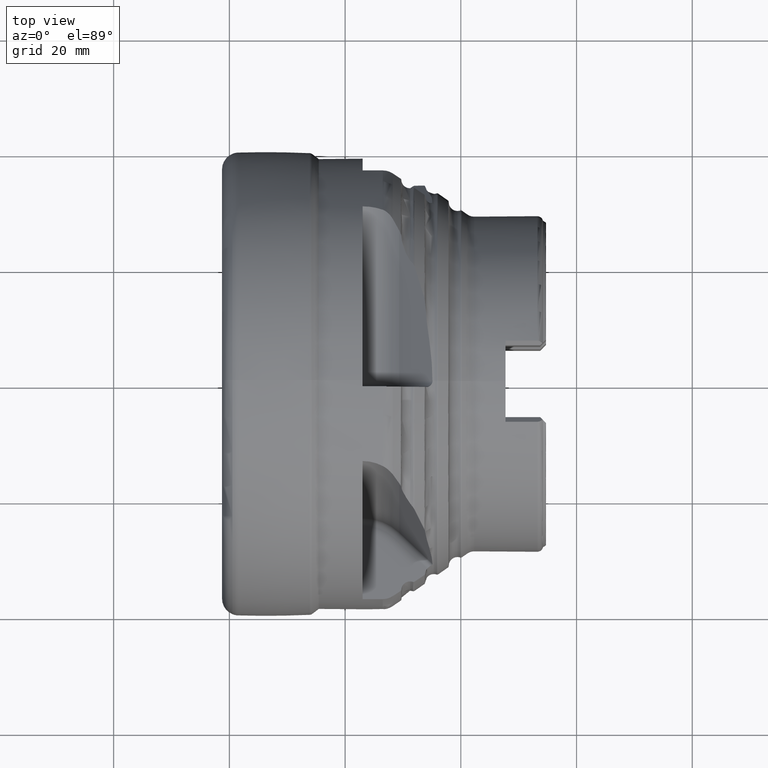
[diagram: clean part render]
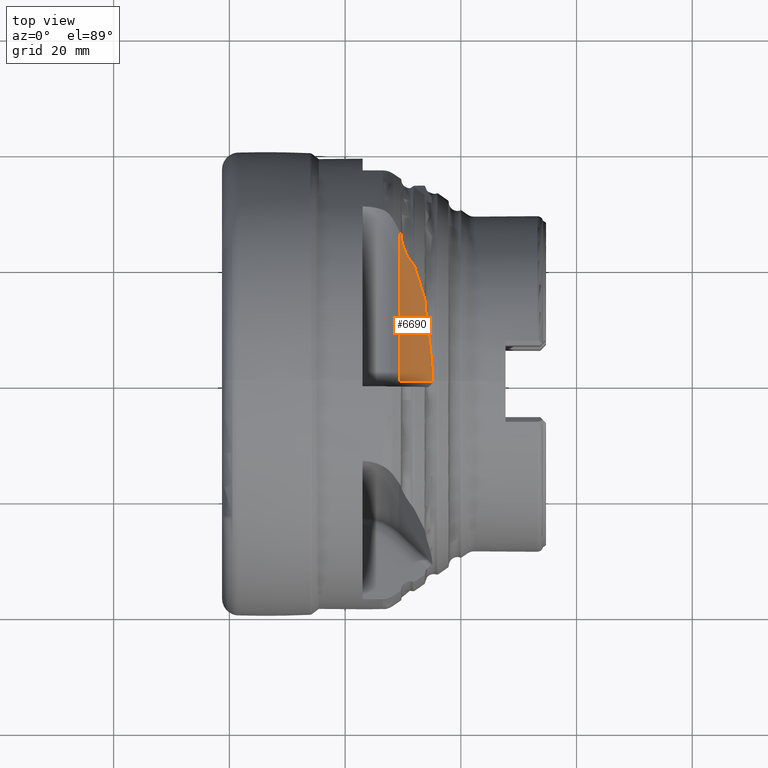
[diagram: same view with one face highlighted and labeled with its STEP entity id]
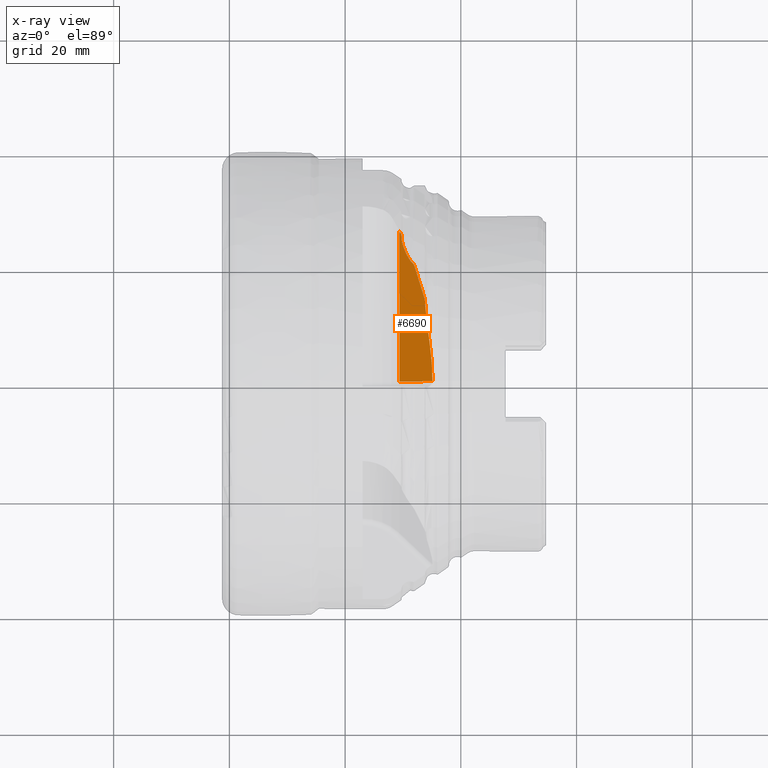
[diagram: x-ray of the same camera — body ghosted, the highlighted face saturated]
A machine part, top view. The second image highlights one B-rep face of the part: STEP entity #6690.
The next image is the same camera in x-ray: the body ghosted, the highlighted face saturated — about 0% of this face is hidden behind the body in this view.
In plain terms, the highlighted planar face has unit normal (-0.7071, -0, 0.7071).
Its self-contained STEP definition (entity closure, byte-faithful):
#28 = EDGE_CURVE ( 'NONE', #6979, #6977, #4887, .T. ) ;
#36 = EDGE_CURVE ( 'NONE', #6976, #6910, #1404, .T. ) ;
#37 = EDGE_CURVE ( 'NONE', #6909, #6979, #1405, .T. ) ;
#44 = EDGE_CURVE ( 'NONE', #6974, #6976, #1411, .T. ) ;
#47 = EDGE_CURVE ( 'NONE', #6972, #6974, #4888, .T. ) ;
#48 = EDGE_CURVE ( 'NONE', #6876, #6972, #1413, .T. ) ;
#153 = EDGE_CURVE ( 'NONE', #6977, #6923, #635, .T. ) ;
#156 = EDGE_CURVE ( 'NONE', #6923, #6875, #624, .T. ) ;
#315 = EDGE_CURVE ( 'NONE', #6890, #6876, #1453, .T. ) ;
#326 = EDGE_CURVE ( 'NONE', #6910, #6909, #1458, .T. ) ;
#613 = VECTOR ( 'NONE', #4629, 1000.000000000000000 ) ;
#624 = LINE ( 'NONE', #4461, #640 ) ;
#635 = LINE ( 'NONE', #4695, #613 ) ;
#640 = VECTOR ( 'NONE', #4707, 1000.000000000000100 ) ;
#1366 = FACE_OUTER_BOUND ( 'NONE', #6403, .T. ) ;
#1404 = B_SPLINE_CURVE_WITH_KNOTS ( 'NONE', 3,
 ( #7063, #7058, #7057, #7056 ),
 .UNSPECIFIED., .F., .F.,
 ( 4, 4 ),
 ( 3.237615775470779700E-007, 0.0008967811624608510100 ),
 .UNSPECIFIED. ) ;
#1405 = B_SPLINE_CURVE_WITH_KNOTS ( 'NONE', 3,
 ( #7059, #7054, #7053, #7052, #7051, #7050 ),
 .UNSPECIFIED., .F., .F.,
 ( 4, 2, 4 ),
 ( 0.0003340537686082686200, 0.0006036569792743976200, 0.0008732601899405264700 ),
 .UNSPECIFIED. ) ;
#1411 = B_SPLINE_CURVE_WITH_KNOTS ( 'NONE', 3,
 ( #7194, #7199, #7200, #7198, #7196, #7197 ),
 .UNSPECIFIED., .F., .F.,
 ( 4, 2, 4 ),
 ( 6.175144802731143700E-007, 0.0003056811056389004900, 0.0006107446967975278600 ),
 .UNSPECIFIED. ) ;
#1413 = B_SPLINE_CURVE_WITH_KNOTS ( 'NONE', 3,
 ( #7202, #7215, #7221, #7222, #7219, #7220 ),
 .UNSPECIFIED., .F., .F.,
 ( 4, 2, 4 ),
 ( 0.0004556930555450783700, 0.0009209709596188730900, 0.001386248863692667800 ),
 .UNSPECIFIED. ) ;
#1453 = B_SPLINE_CURVE_WITH_KNOTS ( 'NONE', 3,
 ( #1516, #1580, #1469, #1507, #1689, #1667, #1594, #1577, #1753, #1661, #1600, #1626, #1562, #1622 ),
 .UNSPECIFIED., .F., .F.,
 ( 4, 2, 2, 2, 2, 2, 4 ),
 ( 0.001099749272328053200, 0.004500736626076648800, 0.007901723979825244600, 0.01130271133357383700, 0.01300320501044813200, 0.01385345184888528300, 0.01470369868732243300 ),
 .UNSPECIFIED. ) ;
#1458 = B_SPLINE_CURVE_WITH_KNOTS ( 'NONE', 3,
 ( #1532, #1767, #1766, #1769, #1629, #1763, #1762, #1715, #1695, #1649, #1709, #1708, #1768, #1760 ),
 .UNSPECIFIED., .F., .F.,
 ( 4, 2, 2, 2, 2, 2, 4 ),
 ( 0.0008967811624608510100, 0.001496497741807382300, 0.002096214321153913700, 0.003295647479846984700, 0.004495080638540056200, 0.005094797217886594100, 0.005694513797233131900 ),
 .UNSPECIFIED. ) ;
#1469 = CARTESIAN_POINT ( 'NONE',  ( 35.04683401583235300, 2.268914078732316300, 32.81891195447445100 ) ) ;
#1507 = CARTESIAN_POINT ( 'NONE',  ( 34.86144128666849400, 4.517259381532301000, 32.63351922531059300 ) ) ;
#1516 = CARTESIAN_POINT ( 'NONE',  ( 35.09986830833947400, 4.354196652457896800E-020, 32.87194624698155800 ) ) ;
#1532 = CARTESIAN_POINT ( 'NONE',  ( 31.23032993495438000, 20.85572683753805400, 29.00240787359651100 ) ) ;
#1562 = CARTESIAN_POINT ( 'NONE',  ( 33.82758236557923200, 13.15464473688919800, 31.59966030422133800 ) ) ;
#1577 = CARTESIAN_POINT ( 'NONE',  ( 34.05401712779833900, 10.63270310376406500, 31.82609506644044800 ) ) ;
#1580 = CARTESIAN_POINT ( 'NONE',  ( 35.09986830833947400, 1.133785510982318900, 32.87194624698155100 ) ) ;
#1594 = CARTESIAN_POINT ( 'NONE',  ( 34.27405978638537200, 8.964817630175950600, 32.04613772502745700 ) ) ;
#1600 = CARTESIAN_POINT ( 'NONE',  ( 33.87691074784719800, 12.31047665211210100, 31.64898868648930000 ) ) ;
#1622 = CARTESIAN_POINT ( 'NONE',  ( 33.82627103026551700, 13.43726402395549400, 31.59834896890761900 ) ) ;
#1626 = CARTESIAN_POINT ( 'NONE',  ( 33.84017839001941000, 12.87294269956251600, 31.61225632866152000 ) ) ;
#1629 = CARTESIAN_POINT ( 'NONE',  ( 30.76417731910525800, 21.60856248885390600, 28.53625525774738800 ) ) ;
#1649 = CARTESIAN_POINT ( 'NONE',  ( 29.84712768899012400, 24.06729060827890600, 27.61920562763226900 ) ) ;
#1661 = CARTESIAN_POINT ( 'NONE',  ( 33.90130511847371500, 12.02956182918720400, 31.67338305711581000 ) ) ;
#1667 = CARTESIAN_POINT ( 'NONE',  ( 34.43725377605961300, 7.856636565922880100, 32.20933171470170500 ) ) ;
#1689 = CARTESIAN_POINT ( 'NONE',  ( 34.73032573723448700, 5.632717076338067000, 32.50240367587658600 ) ) ;
#1695 = CARTESIAN_POINT ( 'NONE',  ( 29.98309940204731600, 23.49929748550044600, 27.75517734068946400 ) ) ;
#1708 = CARTESIAN_POINT ( 'NONE',  ( 29.75104601313109500, 24.65328264356341800, 27.52312395177323600 ) ) ;
#1709 = CARTESIAN_POINT ( 'NONE',  ( 29.80854088780115400, 24.25966151928039600, 27.58061882644329500 ) ) ;
#1715 = CARTESIAN_POINT ( 'NONE',  ( 30.10118137447482300, 23.13086661111229200, 27.87325931311696100 ) ) ;
#1753 = CARTESIAN_POINT ( 'NONE',  ( 33.98481882349442900, 11.18960613829630700, 31.75689676213652000 ) ) ;
#1760 = CARTESIAN_POINT ( 'NONE',  ( 29.73043769693220600, 25.05578014618016900, 27.50251563557435500 ) ) ;
#1762 = CARTESIAN_POINT ( 'NONE',  ( 30.36770548199628500, 22.42817589741174100, 28.13978342063843000 ) ) ;
#1763 = CARTESIAN_POINT ( 'NONE',  ( 30.51691904010258200, 22.09163154216318100, 28.28899697874472000 ) ) ;
#1766 = CARTESIAN_POINT ( 'NONE',  ( 31.03292412082088700, 21.14543209789290000, 28.80500205946302500 ) ) ;
#1767 = CARTESIAN_POINT ( 'NONE',  ( 31.12925927336323200, 20.99627780343606900, 28.90133721200536600 ) ) ;
#1768 = CARTESIAN_POINT ( 'NONE',  ( 29.73205189884033600, 24.85405862211233300, 27.50412983748248400 ) ) ;
#1769 = CARTESIAN_POINT ( 'NONE',  ( 30.85059231411529600, 21.45124685924574600, 28.62267025275743400 ) ) ;
#2067 = AXIS2_PLACEMENT_3D ( 'NONE', #3443, #3446, #3447 ) ;
#2853 = CARTESIAN_POINT ( 'NONE',  ( 35.09973634728064000, -0.1000000000000020200, 32.87181428592273800 ) ) ;
#2857 = CARTESIAN_POINT ( 'NONE',  ( 35.09982432041331900, -0.06666575008013979300, 32.87190225905540300 ) ) ;
#2858 = CARTESIAN_POINT ( 'NONE',  ( 35.09986830833945200, -0.03333241672791531500, 32.87194624698153700 ) ) ;
#2859 = CARTESIAN_POINT ( 'NONE',  ( 35.09986830833947400, 4.354196652457896800E-020, 32.87194624698155800 ) ) ;
#3443 = CARTESIAN_POINT ( 'NONE',  ( 29.36396103067889000, 38.95000000000001000, 27.13603896932104600 ) ) ;
#3444 = PLANE ( 'NONE',  #2067 ) ;
#3446 = DIRECTION ( 'NONE',  ( -0.7071067811865436900, -4.329637285359701700E-017, 0.7071067811865514600 ) ) ;
#3447 = DIRECTION ( 'NONE',  ( 0.7071067811865513500, 0.0000000000000000000, 0.7071067811865435800 ) ) ;
#3552 = B_SPLINE_CURVE_WITH_KNOTS ( 'NONE', 3,
 ( #2853, #2857, #2858, #2859 ),
 .UNSPECIFIED., .F., .F.,
 ( 4, 4 ),
 ( 0.0009997628757270789200, 0.001099749272328053200 ),
 .UNSPECIFIED. ) ;
#3832 = CARTESIAN_POINT ( 'NONE',  ( 35.09973634728064000, -0.1000000000000020200, 32.87181428592273800 ) ) ;
#3833 = CARTESIAN_POINT ( 'NONE',  ( 33.82627103026551700, 13.43726402395549400, 31.59834896890761900 ) ) ;
#3847 = CARTESIAN_POINT ( 'NONE',  ( 35.09986830833947400, 4.354196652457896800E-020, 32.87194624698155800 ) ) ;
#3866 = CARTESIAN_POINT ( 'NONE',  ( 29.73043769693220600, 25.05578014618016900, 27.50251563557435500 ) ) ;
#3867 = CARTESIAN_POINT ( 'NONE',  ( 31.23032993495438000, 20.85572683753805400, 29.00240787359651100 ) ) ;
#3880 = CARTESIAN_POINT ( 'NONE',  ( 29.36396103067889000, -0.1000000000000028600, 27.13603896932104200 ) ) ;
#3926 = CARTESIAN_POINT ( 'NONE',  ( 33.69835924852056800, 14.32883569241140400, 31.47043718716267700 ) ) ;
#3928 = CARTESIAN_POINT ( 'NONE',  ( 31.99780062542403800, 19.82979794135675900, 29.76987856406618200 ) ) ;
#3930 = CARTESIAN_POINT ( 'NONE',  ( 31.72649995546286000, 20.29716065155177800, 29.49857789410498300 ) ) ;
#3931 = CARTESIAN_POINT ( 'NONE',  ( 29.36396103067889000, 26.04670390025549100, 27.13603896932104600 ) ) ;
#3933 = CARTESIAN_POINT ( 'NONE',  ( 29.60252591518726800, 25.55168612465652000, 27.37460385382941700 ) ) ;
#4461 = CARTESIAN_POINT ( 'NONE',  ( 29.36396103067889000, -0.1000000000000028600, 27.13603896932104200 ) ) ;
#4629 = DIRECTION ( 'NONE',  ( 0.0000000000000000000, -1.000000000000000000, -6.123031769111886300E-017 ) ) ;
#4695 = CARTESIAN_POINT ( 'NONE',  ( 29.36396103067889000, 38.95000000000001000, 27.13603896932104600 ) ) ;
#4707 = DIRECTION ( 'NONE',  ( 0.7071067811865513500, -4.329637285359654900E-017, 0.7071067811865435800 ) ) ;
#4887 =( BOUNDED_CURVE ( )  B_SPLINE_CURVE ( 3, ( #7099, #7094, #7093, #7092 ),
 .UNSPECIFIED., .F., .F. ) 
 B_SPLINE_CURVE_WITH_KNOTS ( ( 4, 4 ),
 ( 3.469690055763369000, 3.476292166023215100 ),
 .UNSPECIFIED. ) 
 CURVE ( )  GEOMETRIC_REPRESENTATION_ITEM ( )  RATIONAL_B_SPLINE_CURVE ( ( 1.000000000000000000, 0.9999963676816415700, 0.9999963676816415700, 1.000000000000000000 ) ) 
 REPRESENTATION_ITEM ( '' )  );
#4888 =( BOUNDED_CURVE ( )  B_SPLINE_CURVE ( 3, ( #7208, #7206, #7212, #7213 ),
 .UNSPECIFIED., .F., .T. ) 
 B_SPLINE_CURVE_WITH_KNOTS ( ( 4, 4 ),
 ( 3.323297547860762700, 3.394357073035569900 ),
 .UNSPECIFIED. ) 
 CURVE ( )  GEOMETRIC_REPRESENTATION_ITEM ( )  RATIONAL_B_SPLINE_CURVE ( ( 1.000000000000000000, 0.9995792562539356200, 0.9995792562539356200, 1.000000000000000000 ) ) 
 REPRESENTATION_ITEM ( '' )  );
#5188 = EDGE_CURVE ( 'NONE', #6875, #6890, #3552, .T. ) ;
#5866 = ORIENTED_EDGE ( 'NONE', *, *, #153, .T. ) ;
#5867 = ORIENTED_EDGE ( 'NONE', *, *, #156, .T. ) ;
#5868 = ORIENTED_EDGE ( 'NONE', *, *, #5188, .T. ) ;
#5869 = ORIENTED_EDGE ( 'NONE', *, *, #315, .T. ) ;
#5870 = ORIENTED_EDGE ( 'NONE', *, *, #48, .T. ) ;
#5871 = ORIENTED_EDGE ( 'NONE', *, *, #47, .T. ) ;
#5872 = ORIENTED_EDGE ( 'NONE', *, *, #44, .T. ) ;
#5873 = ORIENTED_EDGE ( 'NONE', *, *, #36, .T. ) ;
#5874 = ORIENTED_EDGE ( 'NONE', *, *, #326, .T. ) ;
#5875 = ORIENTED_EDGE ( 'NONE', *, *, #37, .T. ) ;
#5876 = ORIENTED_EDGE ( 'NONE', *, *, #28, .T. ) ;
#6403 = EDGE_LOOP ( 'NONE', ( #5866, #5867, #5868, #5869, #5870, #5871, #5872, #5873, #5874, #5875, #5876 ) ) ;
#6690 = ADVANCED_FACE ( 'NONE', ( #1366 ), #3444, .T. ) ;
#6875 = VERTEX_POINT ( 'NONE', #3832 ) ;
#6876 = VERTEX_POINT ( 'NONE', #3833 ) ;
#6890 = VERTEX_POINT ( 'NONE', #3847 ) ;
#6909 = VERTEX_POINT ( 'NONE', #3866 ) ;
#6910 = VERTEX_POINT ( 'NONE', #3867 ) ;
#6923 = VERTEX_POINT ( 'NONE', #3880 ) ;
#6972 = VERTEX_POINT ( 'NONE', #3926 ) ;
#6974 = VERTEX_POINT ( 'NONE', #3928 ) ;
#6976 = VERTEX_POINT ( 'NONE', #3930 ) ;
#6977 = VERTEX_POINT ( 'NONE', #3931 ) ;
#6979 = VERTEX_POINT ( 'NONE', #3933 ) ;
#7050 = CARTESIAN_POINT ( 'NONE',  ( 29.60252591518726800, 25.55168612465652000, 27.37460385382941700 ) ) ;
#7051 = CARTESIAN_POINT ( 'NONE',  ( 29.63792348912827300, 25.47744109552392900, 27.41000142777042500 ) ) ;
#7052 = CARTESIAN_POINT ( 'NONE',  ( 29.66751439387231300, 25.39916403840406300, 27.43959233251445400 ) ) ;
#7053 = CARTESIAN_POINT ( 'NONE',  ( 29.71309649332516800, 25.23316657383378100, 27.48517443196730900 ) ) ;
#7054 = CARTESIAN_POINT ( 'NONE',  ( 29.72971633469268200, 25.14592642195354300, 27.50179427333482700 ) ) ;
#7056 = CARTESIAN_POINT ( 'NONE',  ( 31.23032993495438000, 20.85572683753805400, 29.00240787359651100 ) ) ;
#7057 = CARTESIAN_POINT ( 'NONE',  ( 31.38141053821916800, 20.64563100574054700, 29.15348847686129800 ) ) ;
#7058 = CARTESIAN_POINT ( 'NONE',  ( 31.54191760207383100, 20.45128421368464800, 29.31399554071596100 ) ) ;
#7059 = CARTESIAN_POINT ( 'NONE',  ( 29.73043769693220600, 25.05578014618016900, 27.50251563557435500 ) ) ;
#7063 = CARTESIAN_POINT ( 'NONE',  ( 31.72649995546286000, 20.29716065155177800, 29.49857789410498300 ) ) ;
#7092 = CARTESIAN_POINT ( 'NONE',  ( 29.36396103067889000, 26.04670390025549100, 27.13603896932104600 ) ) ;
#7093 = CARTESIAN_POINT ( 'NONE',  ( 29.44424541706439100, 25.88188569770464700, 27.21632335570654600 ) ) ;
#7094 = CARTESIAN_POINT ( 'NONE',  ( 29.52376733408276600, 25.71687917314876200, 27.29584527272490700 ) ) ;
#7099 = CARTESIAN_POINT ( 'NONE',  ( 29.60252591518726800, 25.55168612465652000, 27.37460385382941700 ) ) ;
#7194 = CARTESIAN_POINT ( 'NONE',  ( 31.99780062542403800, 19.82979794135675900, 29.76987856406618200 ) ) ;
#7196 = CARTESIAN_POINT ( 'NONE',  ( 31.78946981877184200, 20.24458173779316900, 29.56154775741396900 ) ) ;
#7197 = CARTESIAN_POINT ( 'NONE',  ( 31.72649995546286000, 20.29716065155177800, 29.49857789410498300 ) ) ;
#7198 = CARTESIAN_POINT ( 'NONE',  ( 31.83877104528525600, 20.16872076097921300, 29.61084898392737900 ) ) ;
#7199 = CARTESIAN_POINT ( 'NONE',  ( 31.96485593370322700, 19.92086558193710000, 29.73693387234534700 ) ) ;
#7200 = CARTESIAN_POINT ( 'NONE',  ( 31.92719110203069000, 20.00754271527360100, 29.69926904067281700 ) ) ;
#7202 = CARTESIAN_POINT ( 'NONE',  ( 33.82627103026551700, 13.43726402395549400, 31.59834896890761900 ) ) ;
#7206 = CARTESIAN_POINT ( 'NONE',  ( 33.22289337631086400, 16.17648648472347600, 30.99497131495299100 ) ) ;
#7208 = CARTESIAN_POINT ( 'NONE',  ( 33.69835924852056800, 14.32883569241140400, 31.47043718716267700 ) ) ;
#7212 = CARTESIAN_POINT ( 'NONE',  ( 32.65580190175401000, 18.01091239093291900, 30.42787984039614500 ) ) ;
#7213 = CARTESIAN_POINT ( 'NONE',  ( 31.99780062542403800, 19.82979794135675900, 29.76987856406618200 ) ) ;
#7215 = CARTESIAN_POINT ( 'NONE',  ( 33.82556170163798000, 13.59013869218149800, 31.59763964028008900 ) ) ;
#7219 = CARTESIAN_POINT ( 'NONE',  ( 33.73531127423169100, 14.18524086558489800, 31.50738921287379300 ) ) ;
#7220 = CARTESIAN_POINT ( 'NONE',  ( 33.69835924852056800, 14.32883569241140400, 31.47043718716267700 ) ) ;
#7221 = CARTESIAN_POINT ( 'NONE',  ( 33.80986269527647900, 13.74022313989906900, 31.58194063391858100 ) ) ;
#7222 = CARTESIAN_POINT ( 'NONE',  ( 33.76523251370372900, 14.03792896244157600, 31.53731045234583200 ) ) ;